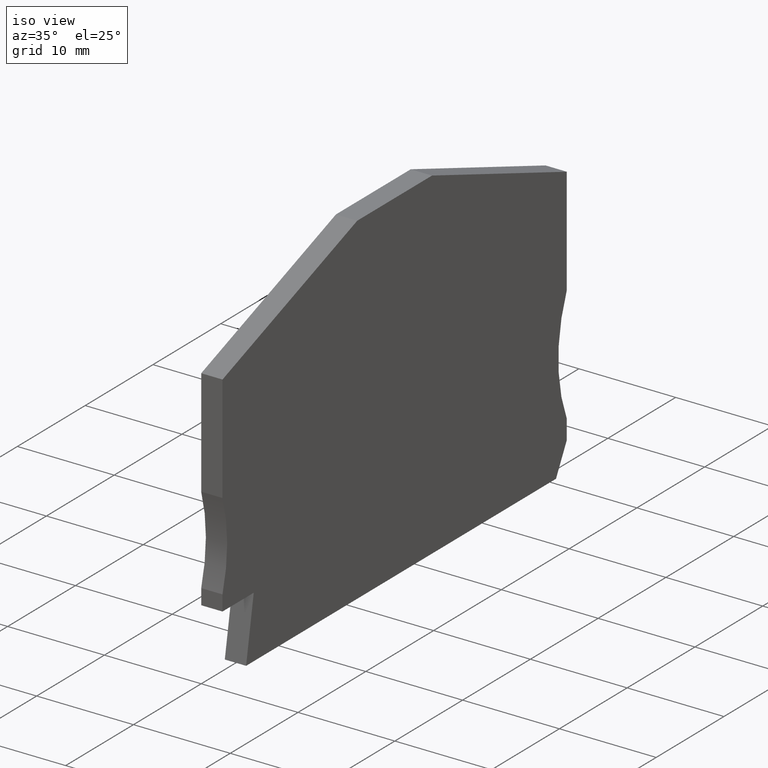
[diagram: clean part render]
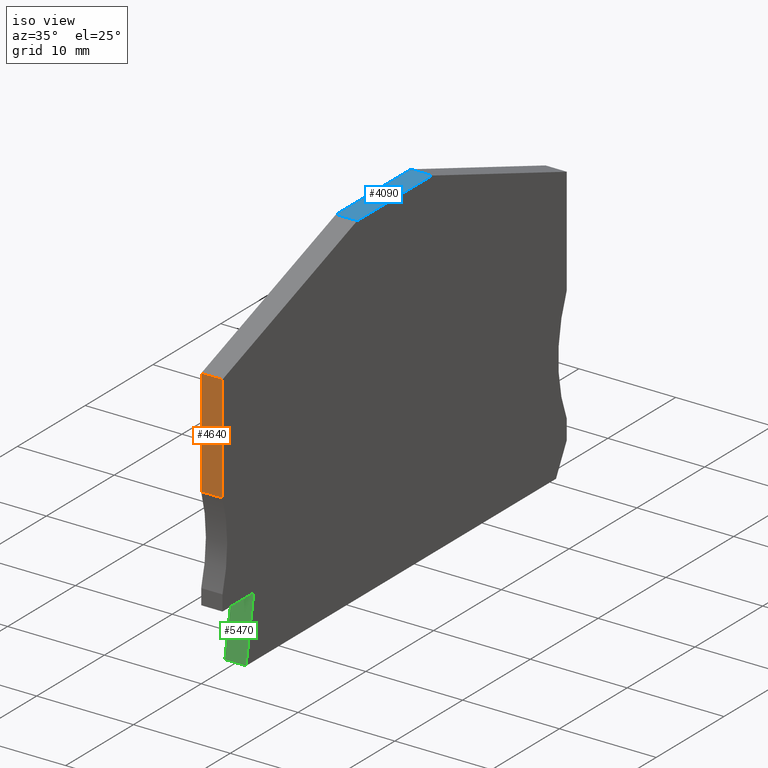
[diagram: same view with three faces highlighted in distinct colors, each labeled with its STEP entity id]
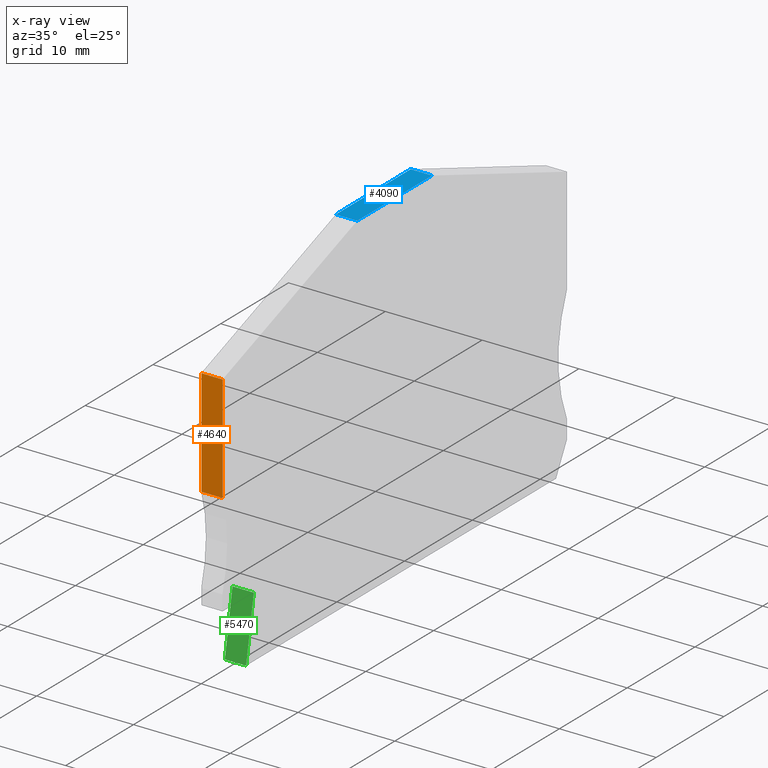
[diagram: x-ray of the same camera — body ghosted, the three highlighted faces saturated]
A machine part, iso view with three faces highlighted in distinct colors.
The next image is the same camera in x-ray (body ghosted, the three faces saturated) — at least one of them is partly hidden behind the body in this view.
Their STEP definitions:

[orange] entity #4640 — the highlighted planar face has unit normal (0, 1, 0).
#610=CARTESIAN_POINT('',(-42.9,17.2172249999973,0.));
#620=VERTEX_POINT('',#610);
#650=CARTESIAN_POINT('',(-42.9,0.,0.));
#660=DIRECTION('',(0.,-1.,0.));
#670=VECTOR('',#660,1.);
#680=LINE('',#650,#670);
#690=CARTESIAN_POINT('',(-42.9,28.2804146507667,0.));
#700=VERTEX_POINT('',#690);
#710=EDGE_CURVE('',#700,#620,#680,.T.);
#1360=CARTESIAN_POINT('',(-42.9,28.2804146507667,0.));
#1370=DIRECTION('',(0.,0.,1.));
#1380=VECTOR('',#1370,1.);
#1390=LINE('',#1360,#1380);
#1400=CARTESIAN_POINT('',(-42.9,28.2804146507667,-2.2));
#1410=VERTEX_POINT('',#1400);
#1420=EDGE_CURVE('',#1410,#700,#1390,.T.);
#2720=CARTESIAN_POINT('',(-42.9,17.2172249999973,-0.799999999999997));
#2730=DIRECTION('',(0.,0.,-1.));
#2740=VECTOR('',#2730,1.);
#2750=LINE('',#2720,#2740);
#2760=CARTESIAN_POINT('',(-42.9,17.2172249999973,-2.2));
#2770=VERTEX_POINT('',#2760);
#2780=EDGE_CURVE('',#620,#2770,#2750,.T.);
#4480=CARTESIAN_POINT('',(-42.9,28.2804146507667,-0.799999999999997));
#4490=DIRECTION('',(1.,0.,0.));
#4500=DIRECTION('',(0.,-1.,0.));
#4510=AXIS2_PLACEMENT_3D('',#4480,#4490,#4500);
#4520=PLANE('',#4510);
#4530=CARTESIAN_POINT('',(-42.9,0.,-2.2));
#4540=DIRECTION('',(0.,-1.,0.));
#4550=VECTOR('',#4540,1.);
#4560=LINE('',#4530,#4550);
#4570=EDGE_CURVE('',#1410,#2770,#4560,.T.);
#4580=ORIENTED_EDGE('',*,*,#4570,.T.);
#4590=ORIENTED_EDGE('',*,*,#1420,.F.);
#4600=ORIENTED_EDGE('',*,*,#710,.F.);
#4610=ORIENTED_EDGE('',*,*,#2780,.F.);
#4620=EDGE_LOOP('',(#4610,#4600,#4590,#4580));
#4630=FACE_OUTER_BOUND('',#4620,.T.);
#4640=ADVANCED_FACE('',(#4630),#4520,.F.);

[blue] entity #4090 — the highlighted planar face has unit normal (0, 0, -1).
#770=CARTESIAN_POINT('',(-23.017026976606,35.517225,0.));
#780=VERTEX_POINT('',#770);
#810=CARTESIAN_POINT('',(0.,35.517225,0.));
#820=DIRECTION('',(1.,0.,0.));
#830=VECTOR('',#820,1.);
#840=LINE('',#810,#830);
#850=CARTESIAN_POINT('',(-11.9829730233949,35.517225,0.));
#860=VERTEX_POINT('',#850);
#870=EDGE_CURVE('',#780,#860,#840,.T.);
#1270=CARTESIAN_POINT('',(-23.017026976606,35.517225,0.));
#1280=DIRECTION('',(0.,0.,-1.));
#1290=VECTOR('',#1280,1.);
#1300=LINE('',#1270,#1290);
#1310=CARTESIAN_POINT('',(-23.017026976606,35.517225,-2.2));
#1320=VERTEX_POINT('',#1310);
#1330=EDGE_CURVE('',#780,#1320,#1300,.T.);
#2350=CARTESIAN_POINT('',(-11.9829730233949,35.517225,0.));
#2360=DIRECTION('',(0.,0.,1.));
#2370=VECTOR('',#2360,1.);
#2380=LINE('',#2350,#2370);
#2390=CARTESIAN_POINT('',(-11.9829730233949,35.517225,-2.2));
#2400=VERTEX_POINT('',#2390);
#2410=EDGE_CURVE('',#2400,#860,#2380,.T.);
#3930=CARTESIAN_POINT('',(-23.017026976606,35.517225,-0.799999999999997)
);
#3940=DIRECTION('',(0.,-1.,0.));
#3950=DIRECTION('',(1.,0.,0.));
#3960=AXIS2_PLACEMENT_3D('',#3930,#3940,#3950);
#3970=PLANE('',#3960);
#3980=ORIENTED_EDGE('',*,*,#870,.T.);
#3990=ORIENTED_EDGE('',*,*,#1330,.F.);
#4000=CARTESIAN_POINT('',(0.,35.517225,-2.2));
#4010=DIRECTION('',(-1.,0.,0.));
#4020=VECTOR('',#4010,1.);
#4030=LINE('',#4000,#4020);
#4040=EDGE_CURVE('',#2400,#1320,#4030,.T.);
#4050=ORIENTED_EDGE('',*,*,#4040,.T.);
#4060=ORIENTED_EDGE('',*,*,#2410,.F.);
#4070=EDGE_LOOP('',(#4060,#4050,#3990,#3980));
#4080=FACE_OUTER_BOUND('',#4070,.T.);
#4090=ADVANCED_FACE('',(#4080),#3970,.F.);

[green] entity #5470 — the highlighted planar face has unit normal (0, 0.9848, -0.1736).
#280=CARTESIAN_POINT('',(-39.4166561668892,0.217224999999992,0.));
#290=VERTEX_POINT('',#280);
#320=CARTESIAN_POINT('',(-39.4549587952736,0.,0.));
#330=DIRECTION('',(0.173648177666793,0.984807753012232,0.));
#340=VECTOR('',#330,1.);
#350=LINE('',#320,#340);
#360=CARTESIAN_POINT('',(-38.2881634903552,6.61722500000401,0.));
#370=VERTEX_POINT('',#360);
#380=EDGE_CURVE('',#290,#370,#350,.T.);
#2080=CARTESIAN_POINT('',(-39.4166561668892,0.217224999999992,-2.2));
#2090=VERTEX_POINT('',#2080);
#2120=CARTESIAN_POINT('',(-39.4166561668892,0.217224999999992,0.));
#2130=DIRECTION('',(0.,0.,-1.));
#2140=VECTOR('',#2130,1.);
#2150=LINE('',#2120,#2140);
#2160=EDGE_CURVE('',#290,#2090,#2150,.T.);
#4890=CARTESIAN_POINT('',(-38.2881634903552,6.61722500000401,-2.2));
#4900=VERTEX_POINT('',#4890);
#4930=CARTESIAN_POINT('',(-39.4549587952736,0.,-2.2));
#4940=DIRECTION('',(-0.173648177666793,-0.984807753012232,0.));
#4950=VECTOR('',#4940,1.);
#4960=LINE('',#4930,#4950);
#4970=EDGE_CURVE('',#4900,#2090,#4960,.T.);
#5190=CARTESIAN_POINT('',(-38.2881634903552,6.617225000004,0.));
#5200=DIRECTION('',(0.,0.,-1.));
#5210=VECTOR('',#5200,1.);
#5220=LINE('',#5190,#5210);
#5230=EDGE_CURVE('',#370,#4900,#5220,.T.);
#5360=CARTESIAN_POINT('',(-38.2881634903552,6.61722500000401,
-4.40000240000002));
#5370=DIRECTION('',(0.984807753012232,-0.173648177666793,0.));
#5380=DIRECTION('',(-0.173648177666793,-0.984807753012232,0.));
#5390=AXIS2_PLACEMENT_3D('',#5360,#5370,#5380);
#5400=PLANE('',#5390);
#5410=ORIENTED_EDGE('',*,*,#5230,.T.);
#5420=ORIENTED_EDGE('',*,*,#380,.T.);
#5430=ORIENTED_EDGE('',*,*,#2160,.F.);
#5440=ORIENTED_EDGE('',*,*,#4970,.T.);
#5450=EDGE_LOOP('',(#5440,#5430,#5420,#5410));
#5460=FACE_OUTER_BOUND('',#5450,.T.);
#5470=ADVANCED_FACE('',(#5460),#5400,.F.);